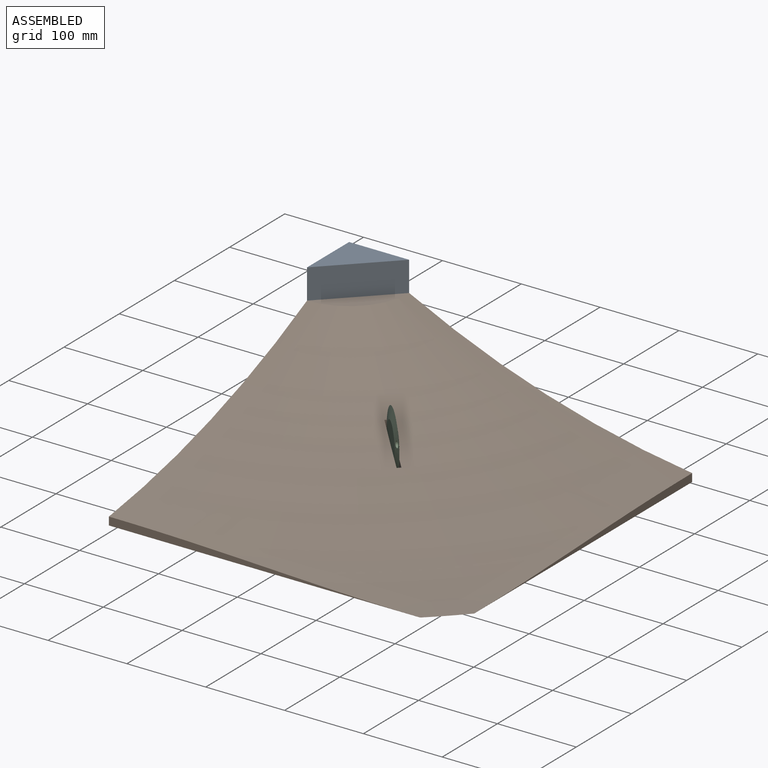
[diagram: assembled view]
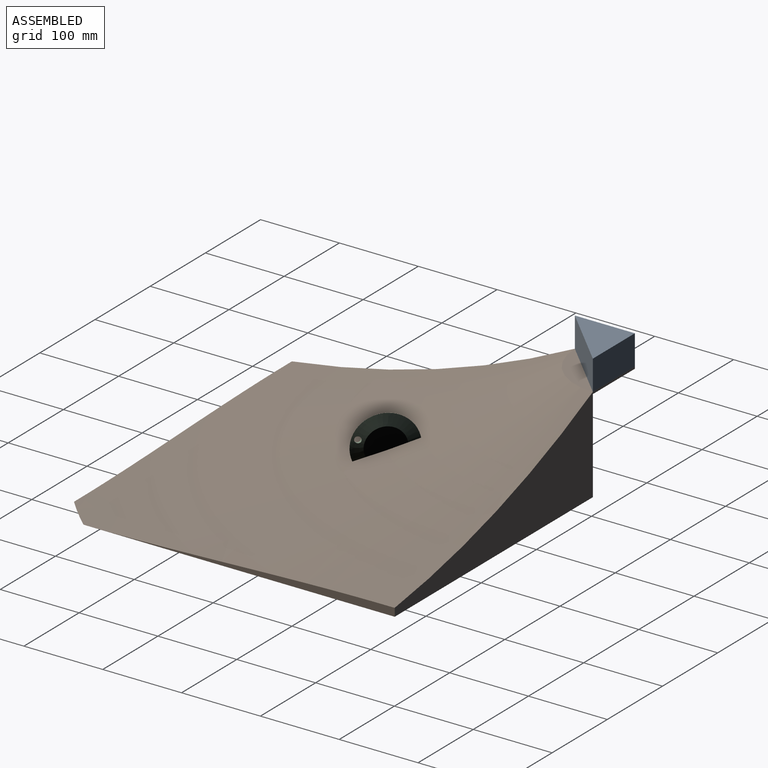
[diagram: assembled view, second angle]
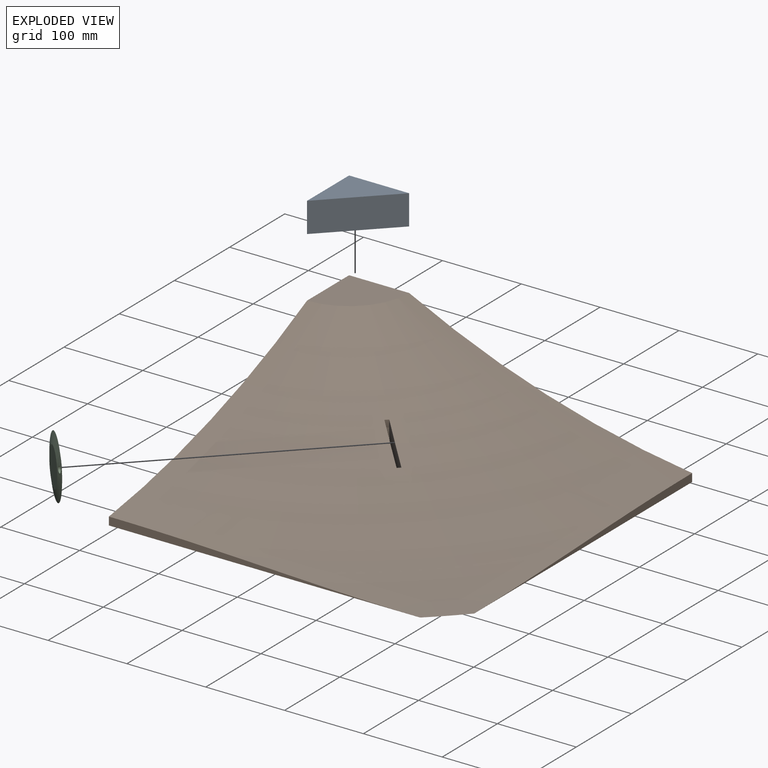
[diagram: exploded view]
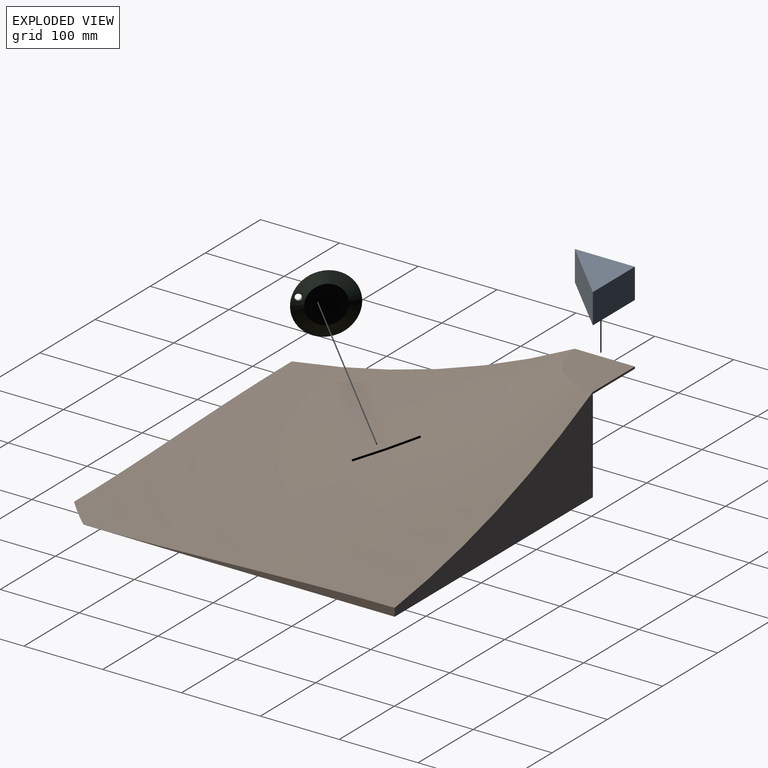
[diagram: exploded view, second angle]
ASSEMBLY  parts=3 mates=2
PART A: 5 faces, bbox 76.2x76.2x38.1 mm
  f0: plane 76.2x76.2mm, normal (0.71,0.71,0), area 4105.8mm2, adj f1,f2,f3,f4
  f1: plane 76.2x38.1mm, normal (-1,0,0), area 2903.2mm2, adj f0,f2,f3,f4
  f2: plane 76.2x38.1mm, normal (0,-1,0), area 2903.2mm2, adj f0,f1,f3,f4
  f3: plane 76.2x76.2mm, normal (0,0,1), area 2903.2mm2, adj f0,f1,f2
  f4: plane 76.2x76.2mm, normal (0,0,-1), area 2903.2mm2, adj f0,f1,f2
PART B: 12 faces, bbox 587.7x587.7x120.8 mm
  f0: torus R=587.55mm, axis (0,0,-1), area 189349.1mm2, adj f1,f2,f3,f4,f5,f7,f9,f10
  f1: plane 435.15x435.15mm, normal (0,0,-1), area 185661.8mm2, adj f0,f2,f3,f4,f5,f6
  f2: plane 435.15x120.7mm, normal (0,1,0), area 19794mm2, adj f0,f1,f3,f5,f6,f7,f8
  f3: plane 435.15x120.7mm, normal (-1,0,0), area 19794mm2, adj f0,f1,f2,f4,f6,f7,f8
  f4: plane 394.81x10.23mm, normal (0,-1,0), area 2051.7mm2, adj f0,f1,f3
  f5: plane 394.81x10.22mm, normal (1,0,0), area 2051.6mm2, adj f0,f1,f2
  f6: plane 118.16x76.2mm, normal (-0.71,0.71,0), area 12732.9mm2, adj f1,f2,f3,f8
  f7: plane 76.2x76.2mm, normal (0,0,1), area 4560.4mm2, adj f0,f2,f3
  f8: plane 76.2x76.2mm, normal (0,0,-1), area 2903.2mm2, adj f2,f3,f6
  f9: cylinder r=38.1mm len=55.67mm, axis (0.71,0.71,0), area 577.4mm2, adj f0,f10,f11
  f10: plane 52.2x52.2mm, normal (0.71,0.71,0), area 2018.9mm2, adj f0,f9
  f11: plane 52.2x52.2mm, normal (-0.71,-0.71,0), area 2018.9mm2, adj f0,f9
PART C: 5 faces, bbox 76.2x5.1x76.2 mm
  f0: plane 47.39x47.39mm, normal (0,-1,0), area 1763.8mm2, adj f1
  f1: cone r=38.1mm half-angle=80deg, axis (0,1,0), area 2791.2mm2, adj f0,f2,f4
  f2: cone r=38.1mm half-angle=80deg, axis (0,-1,0), area 2791mm2, adj f1,f3,f4
  f3: plane 47.39x47.39mm, normal (0,1,0), area 1763.8mm2, adj f2
  f4: cylinder r=3.91mm len=7.82mm, axis (0,-1,0), area 59.5mm2, adj f1,f2
PLACE A rot(axis=(-1,0,0),180deg) t=(-27.01,558.74,212.53)mm
PLACE B t=(1.52,-1.52,53.74)mm fixed
PLACE C rot(axis=(0.43,-0.18,0.88),139.8deg) t=(135.82,451.73,119.84)mm
MATE revolute C.f1 <-> B.f9  axis (0.71,0.71,0) through (189.33,401.81,104.54)mm
MATE fastened A.f3 <-> B.f0  axis (0,0,-1) through (1.52,586.03,174.43)mm
